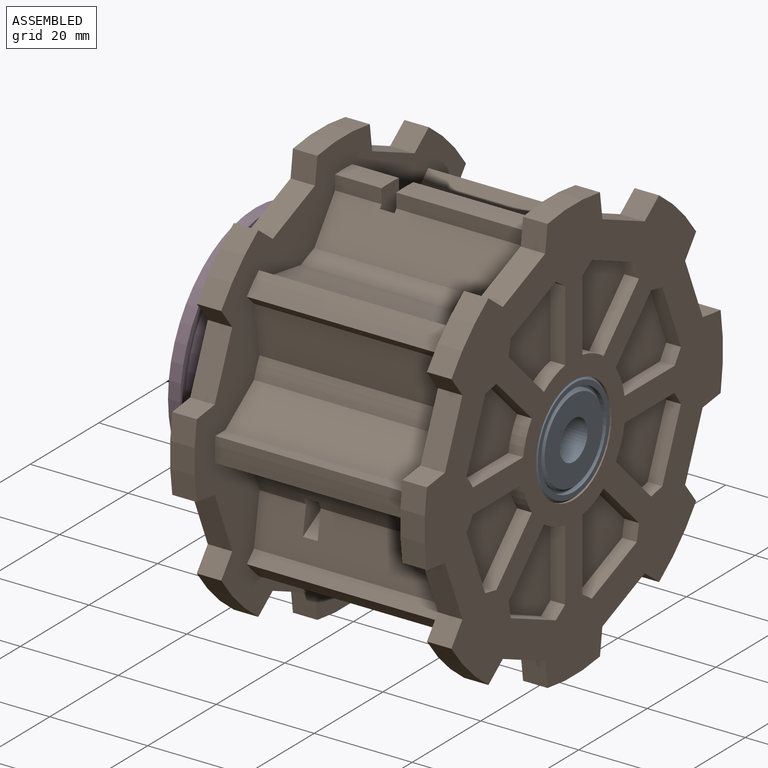
[diagram: assembled view]
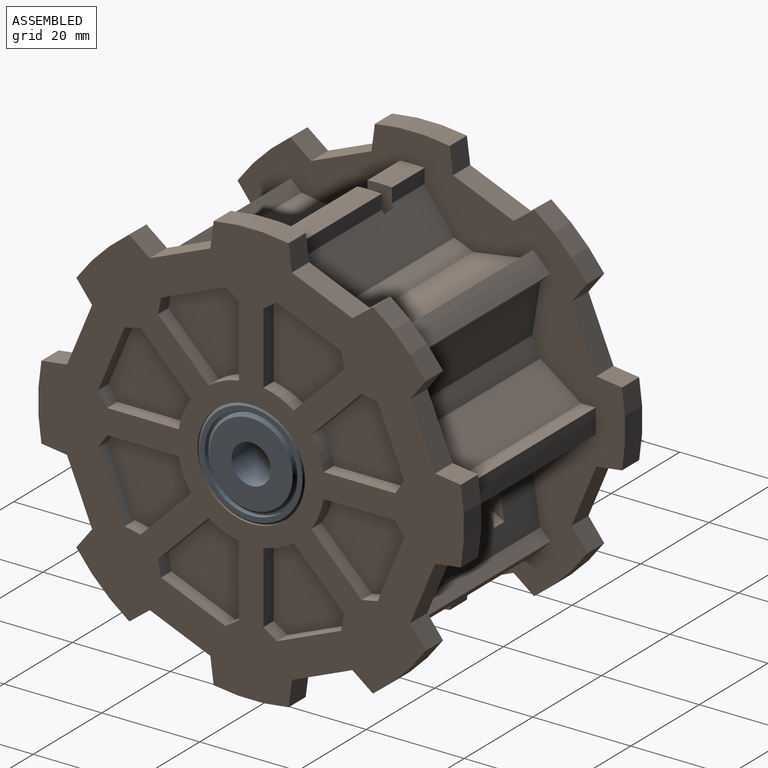
[diagram: assembled view, second angle]
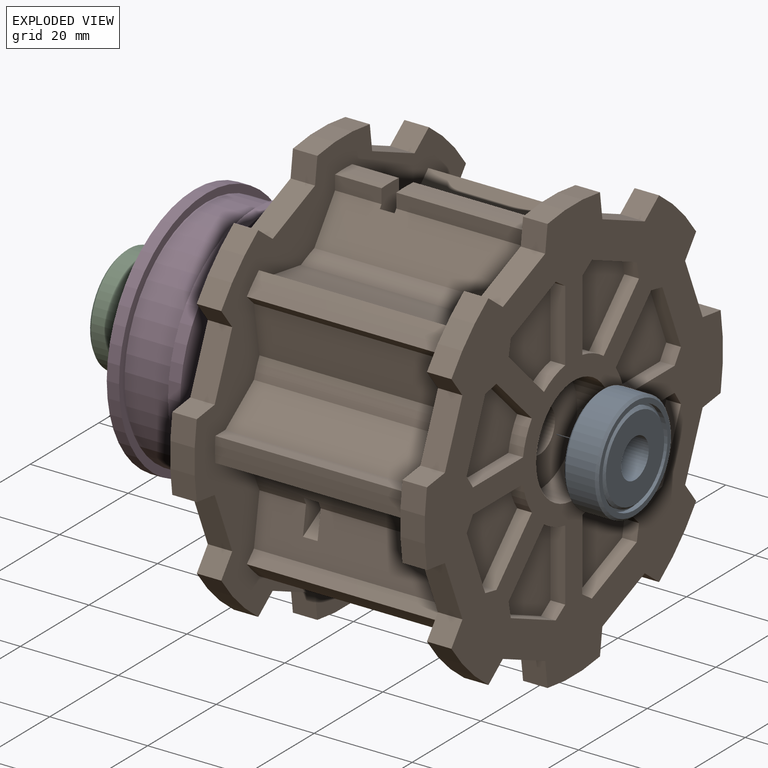
[diagram: exploded view]
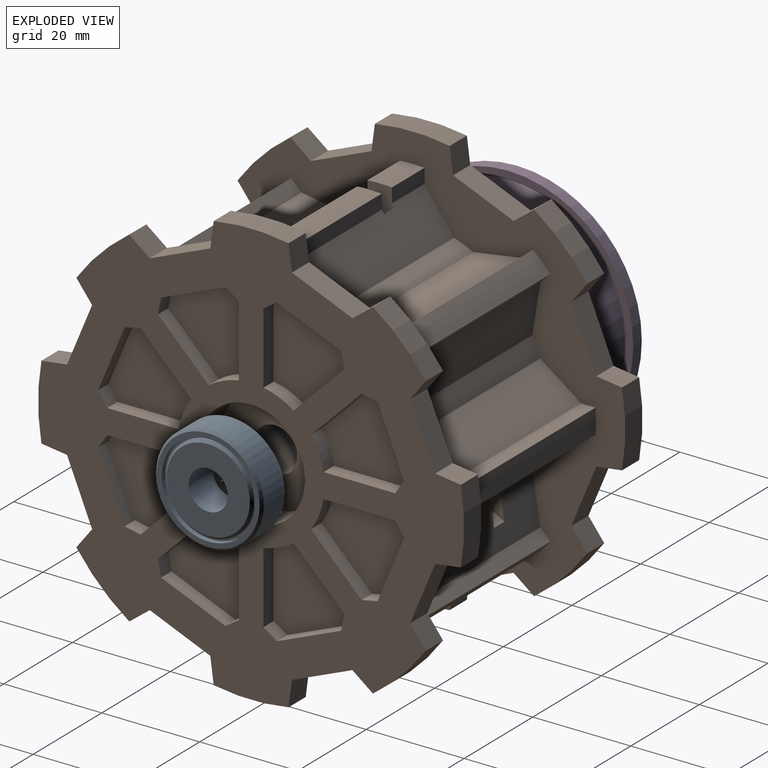
[diagram: exploded view, second angle]
ASSEMBLY  parts=4 mates=4
PART A: 16 faces, bbox 22x22x7 mm
  f0: cone r=8.5mm half-angle=45deg, axis (0,0,1), area 38.9mm2, adj f1,f15
  f1: plane 17x17mm, normal (0,0,-1), area 176.7mm2, adj f0,f2
  f2: cylinder r=4mm len=8mm, axis (0,0,-1), area 175.9mm2, adj f1,f3
  f3: plane 17x17mm, normal (0,0,1), area 176.7mm2, adj f2,f4
  f4: cone r=8.5mm half-angle=45deg, axis (0,0,-1), area 38.9mm2, adj f3,f5
  f5: cylinder r=9mm len=18mm, axis (0,0,-1), area 28.3mm2, adj f4,f6
  f6: plane 19x19mm, normal (0,0,1), area 29.1mm2, adj f5,f7
  f7: cylinder r=9.5mm len=19mm, axis (0,0,-1), area 59.7mm2, adj f6,f8
  f8: plane 21x21mm, normal (0,0,1), area 62.8mm2, adj f7,f9
  f9: cone r=10.5mm half-angle=45deg, axis (0,0,-1), area 47.8mm2, adj f8,f10
  f10: cylinder r=11mm len=22mm, axis (0,0,-1), area 414.7mm2, adj f9,f11
  f11: cone r=10.5mm half-angle=45deg, axis (0,0,1), area 47.8mm2, adj f10,f12
  f12: plane 21x21mm, normal (0,0,-1), area 62.8mm2, adj f11,f13
  f13: cylinder r=9.5mm len=19mm, axis (0,0,-1), area 59.7mm2, adj f12,f14
  f14: plane 19x19mm, normal (0,0,-1), area 29.1mm2, adj f13,f15
  f15: cylinder r=9mm len=18mm, axis (0,0,-1), area 28.3mm2, adj f0,f14
PART B: 206 faces, bbox 52x87x87 mm
  f0: cylinder r=1.65mm len=12.5mm, axis (-1,0,0), area 129.6mm2, adj f182,f202
  f1: cylinder r=1.65mm len=12.5mm, axis (-1,0,0), area 129.6mm2, adj f182,f195
  f2: plane 9.5x2.95mm, normal (0,1,0), area 28mm2, adj f4,f104,f134,f188
  f3: plane 9.5x2.95mm, normal (0,-1,0), area 28mm2, adj f4,f104,f135,f188
  f4: cylinder r=37.5mm len=9.5mm, axis (-1,0,0), area 47.5mm2, adj f2,f3,f104,f188
  f5: cylinder r=1.65mm len=12.5mm, axis (-1,0,0), area 129.6mm2, adj f182,f188
  f6: cylinder r=27.5mm len=42mm, axis (-1,0,0), area 177.6mm2, adj f14,f103,f104,f134
  f7: plane 3.27x3mm, normal (0,-0.98,-0.2), area 10mm2, adj f9,f12,f13,f101
  f8: plane 3x2.77mm, normal (0,0.56,-0.83), area 10mm2, adj f9,f10,f13,f101
  f9: plane 13.1x5.43mm, normal (0,-0.38,-0.92), area 42.5mm2, adj f7,f8,f13,f101
  f10: plane 14.61x3mm, normal (0,1,0), area 43.8mm2, adj f8,f11,f13,f101
  f11: cylinder r=15mm len=6.19mm, axis (1,0,0), area 20.3mm2, adj f10,f12,f13,f101
  f12: plane 10.33x10.33mm, normal (0,-0.71,0.71), area 43.8mm2, adj f7,f11,f13,f101
  f13: plane 19.03x16.52mm, normal (1,0,0), area 208.7mm2, adj f7,f8,f9,f10,f11,f12
  f14: plane 42x10.16mm, normal (0,-0.16,0.99), area 432.2mm2, adj f6,f17,f103,f104
  f15: plane 42x10.16mm, normal (0,0.99,-0.16), area 432.2mm2, adj f16,f19,f103,f104
  f16: plane 42x2.08mm, normal (0,0.71,-0.71), area 123.8mm2, adj f15,f18,f103,f104
  f17: plane 42x2.08mm, normal (0,-0.71,0.71), area 123.8mm2, adj f14,f18,f103,f104
  f18: cylinder r=37.5mm len=42mm, axis (-1,0,0), area 210.2mm2, adj f16,f17,f103,f104
  f19: cylinder r=27.5mm len=42mm, axis (-1,0,0), area 177.6mm2, adj f15,f27,f103,f104
  f20: plane 3x2.77mm, normal (0,-0.83,0.56), area 10mm2, adj f22,f25,f26,f101
  f21: plane 3.27x3mm, normal (0,-0.2,-0.98), area 10mm2, adj f22,f23,f26,f101
  f22: plane 13.1x5.43mm, normal (0,-0.92,-0.38), area 42.5mm2, adj f20,f21,f26,f101
  f23: plane 10.33x10.33mm, normal (0,0.71,-0.71), area 43.8mm2, adj f21,f24,f26,f101
  f24: cylinder r=15mm len=6.19mm, axis (1,0,0), area 20.3mm2, adj f23,f25,f26,f101
  f25: plane 14.61x3mm, normal (0,0,1), area 43.8mm2, adj f20,f24,f26,f101
  f26: plane 19.03x16.52mm, normal (1,0,0), area 208.7mm2, adj f20,f21,f22,f23,f24,f25
  f27: plane 42x8.33mm, normal (0,0.59,0.81), area 432.2mm2, adj f19,f30,f103,f104
  f28: plane 42x8.33mm, normal (0,0.59,-0.81), area 432.2mm2, adj f29,f32,f103,f104
  f29: plane 42x2.95mm, normal (0,0,-1), area 123.8mm2, adj f28,f31,f103,f104
  f30: plane 42x2.95mm, normal (0,0,1), area 123.8mm2, adj f27,f31,f103,f104
  f31: cylinder r=37.5mm len=42mm, axis (-1,0,0), area 210.2mm2, adj f29,f30,f103,f104
  f32: cylinder r=27.5mm len=42mm, axis (-1,0,0), area 173mm2, adj f28,f40,f103,f104,f192,f194,f195
  f33: plane 3.27x3mm, normal (0,-0.2,0.98), area 10mm2, adj f35,f38,f39,f101
  f34: plane 3x2.77mm, normal (0,-0.83,-0.56), area 10mm2, adj f35,f36,f39,f101
  f35: plane 13.1x5.43mm, normal (0,-0.92,0.38), area 42.5mm2, adj f33,f34,f39,f101
  f36: plane 14.61x3mm, normal (0,0,-1), area 43.8mm2, adj f34,f37,f39,f101
  f37: cylinder r=15mm len=6.19mm, axis (1,0,0), area 20.3mm2, adj f36,f38,f39,f101
  f38: plane 10.33x10.33mm, normal (0,0.71,0.71), area 43.8mm2, adj f33,f37,f39,f101
  f39: plane 19.03x16.52mm, normal (1,0,0), area 208.7mm2, adj f33,f34,f35,f36,f37,f38
  f40: plane 42x10.16mm, normal (0,0.99,0.16), area 414.9mm2, adj f32,f43,f103,f104,f193,f194,f195
  f41: plane 42x10.16mm, normal (0,-0.16,-0.99), area 432.2mm2, adj f42,f45,f103,f104
  f42: plane 42x2.08mm, normal (0,-0.71,-0.71), area 123.8mm2, adj f41,f44,f103,f104
  f43: plane 42x2.08mm, normal (0,0.71,0.71), area 123.8mm2, adj f40,f44,f103,f104
  f44: cylinder r=37.5mm len=42mm, axis (-1,0,0), area 210.2mm2, adj f42,f43,f103,f104
  f45: cylinder r=27.5mm len=42mm, axis (-1,0,0), area 177.6mm2, adj f41,f53,f103,f104
  f46: plane 3x2.77mm, normal (0,0.56,0.83), area 10mm2, adj f48,f51,f52,f101
  f47: plane 3.27x3mm, normal (0,-0.98,0.2), area 10mm2, adj f48,f49,f52,f101
  f48: plane 13.1x5.43mm, normal (0,-0.38,0.92), area 42.5mm2, adj f46,f47,f52,f101
  f49: plane 10.33x10.33mm, normal (0,-0.71,-0.71), area 43.8mm2, adj f47,f50,f52,f101
  f50: cylinder r=15mm len=6.19mm, axis (1,0,0), area 20.3mm2, adj f49,f51,f52,f101
  f51: plane 14.61x3mm, normal (0,1,0), area 43.8mm2, adj f46,f50,f52,f101
  f52: plane 19.03x16.52mm, normal (1,0,0), area 208.7mm2, adj f46,f47,f48,f49,f50,f51
  f53: plane 42x8.33mm, normal (0,0.81,-0.59), area 432.2mm2, adj f45,f56,f103,f104
  f54: plane 42x8.33mm, normal (0,-0.81,-0.59), area 432.2mm2, adj f55,f58,f103,f104
  f55: plane 42x2.95mm, normal (0,-1,0), area 123.8mm2, adj f54,f57,f103,f104
  f56: plane 42x2.95mm, normal (0,1,0), area 123.8mm2, adj f53,f57,f103,f104
  f57: cylinder r=37.5mm len=42mm, axis (-1,0,0), area 210.2mm2, adj f55,f56,f103,f104
  f58: cylinder r=27.5mm len=42mm, axis (-1,0,0), area 177.6mm2, adj f54,f66,f103,f104
  f59: plane 3.27x3mm, normal (0,0.98,0.2), area 10mm2, adj f61,f64,f65,f101
  f60: plane 3x2.77mm, normal (0,-0.56,0.83), area 10mm2, adj f61,f62,f65,f101
  f61: plane 13.1x5.43mm, normal (0,0.38,0.92), area 42.5mm2, adj f59,f60,f65,f101
  f62: plane 14.61x3mm, normal (0,-1,0), area 43.8mm2, adj f60,f63,f65,f101
  f63: cylinder r=15mm len=6.19mm, axis (1,0,0), area 20.3mm2, adj f62,f64,f65,f101
  f64: plane 10.33x10.33mm, normal (0,0.71,-0.71), area 43.8mm2, adj f59,f63,f65,f101
  f65: plane 19.03x16.52mm, normal (1,0,0), area 208.7mm2, adj f59,f60,f61,f62,f63,f64
  f66: plane 42x10.16mm, normal (0,0.16,-0.99), area 432.2mm2, adj f58,f69,f103,f104
  f67: plane 42x10.16mm, normal (0,-0.99,0.16), area 414.9mm2, adj f68,f71,f103,f104,f199,f201,f202
  f68: plane 42x2.08mm, normal (0,-0.71,0.71), area 123.8mm2, adj f67,f70,f103,f104
  f69: plane 42x2.08mm, normal (0,0.71,-0.71), area 123.8mm2, adj f66,f70,f103,f104
  f70: cylinder r=37.5mm len=42mm, axis (-1,0,0), area 210.2mm2, adj f68,f69,f103,f104
  f71: cylinder r=27.5mm len=42mm, axis (-1,0,0), area 173mm2, adj f67,f79,f103,f104,f200,f201,f202
  f72: plane 3x2.77mm, normal (0,0.83,-0.56), area 10mm2, adj f74,f77,f78,f101
  f73: plane 3.27x3mm, normal (0,0.2,0.98), area 10mm2, adj f74,f75,f78,f101
  f74: plane 13.1x5.43mm, normal (0,0.92,0.38), area 42.5mm2, adj f72,f73,f78,f101
  f75: plane 10.33x10.33mm, normal (0,-0.71,0.71), area 43.8mm2, adj f73,f76,f78,f101
  f76: cylinder r=15mm len=6.19mm, axis (1,0,0), area 20.3mm2, adj f75,f77,f78,f101
  f77: plane 14.61x3mm, normal (0,0,-1), area 43.8mm2, adj f72,f76,f78,f101
  f78: plane 19.03x16.52mm, normal (1,0,0), area 208.7mm2, adj f72,f73,f74,f75,f76,f77
  f79: plane 42x8.33mm, normal (0,-0.59,-0.81), area 432.2mm2, adj f71,f82,f103,f104
  f80: plane 42x8.33mm, normal (0,-0.59,0.81), area 432.2mm2, adj f81,f84,f103,f104
  f81: plane 42x2.95mm, normal (0,0,1), area 123.8mm2, adj f80,f83,f103,f104
  f82: plane 42x2.95mm, normal (0,0,-1), area 123.8mm2, adj f79,f83,f103,f104
  f83: cylinder r=37.5mm len=42mm, axis (-1,0,0), area 210.2mm2, adj f81,f82,f103,f104
  f84: cylinder r=27.5mm len=42mm, axis (-1,0,0), area 177.6mm2, adj f80,f92,f103,f104
  f85: plane 3.27x3mm, normal (0,0.2,-0.98), area 10mm2, adj f87,f90,f91,f101
  f86: plane 3x2.77mm, normal (0,0.83,0.56), area 10mm2, adj f87,f88,f91,f101
  f87: plane 13.1x5.43mm, normal (0,0.92,-0.38), area 42.5mm2, adj f85,f86,f91,f101
  f88: plane 14.61x3mm, normal (0,0,1), area 43.8mm2, adj f86,f89,f91,f101
  f89: cylinder r=15mm len=6.19mm, axis (1,0,0), area 20.3mm2, adj f88,f90,f91,f101
  f90: plane 10.33x10.33mm, normal (0,-0.71,-0.71), area 43.8mm2, adj f85,f89,f91,f101
  f91: plane 19.03x16.52mm, normal (1,0,0), area 208.7mm2, adj f85,f86,f87,f88,f89,f90
  f92: plane 42x10.16mm, normal (0,-0.99,-0.16), area 432.2mm2, adj f84,f95,f103,f104
  f93: plane 42x10.16mm, normal (0,0.16,0.99), area 432.2mm2, adj f94,f103,f104,f119
  f94: plane 42x2.08mm, normal (0,0.71,0.71), area 123.8mm2, adj f93,f96,f103,f104
  f95: plane 42x2.08mm, normal (0,-0.71,-0.71), area 123.8mm2, adj f92,f96,f103,f104
  f96: cylinder r=37.5mm len=42mm, axis (-1,0,0), area 210.2mm2, adj f94,f95,f103,f104
  f97: cylinder r=43.5mm len=10.81mm, axis (-1,0,0), area 76.8mm2, adj f102,f104,f168,f172
  f98: cylinder r=43.5mm len=15.29mm, axis (-1,0,0), area 76.8mm2, adj f102,f104,f159,f169
  f99: cylinder r=43.5mm len=10.81mm, axis (-1,0,0), area 76.8mm2, adj f101,f103,f174,f176
  f100: cylinder r=43.5mm len=15.29mm, axis (-1,0,0), area 76.8mm2, adj f101,f103,f165,f173
  f101: plane 87x87mm, normal (1,0,0), area 3208.2mm2, adj f7,f8,f9,f10,f11,f12,f20,f21
  f102: plane 87x87mm, normal (-1,0,0), area 3215.2mm2, adj f97,f98,f105,f106,f109,f110,f114,f116
  f103: plane 87x87mm, normal (-1,0,0), area 2150.8mm2, adj f6,f14,f15,f16,f17,f18,f19,f27
  f104: plane 87x87mm, normal (1,0,0), area 2150.8mm2, adj f2,f3,f4,f6,f14,f15,f16,f17
  f105: cylinder r=43.5mm len=10.81mm, axis (-1,0,0), area 76.8mm2, adj f102,f104,f156,f160
  f106: cylinder r=43.5mm len=15.29mm, axis (-1,0,0), area 76.8mm2, adj f102,f104,f147,f157
  f107: cylinder r=43.5mm len=10.81mm, axis (-1,0,0), area 76.8mm2, adj f101,f103,f162,f164
  f108: cylinder r=43.5mm len=15.29mm, axis (-1,0,0), area 76.8mm2, adj f101,f103,f153,f161
  f109: cylinder r=43.5mm len=10.81mm, axis (-1,0,0), area 76.8mm2, adj f102,f104,f144,f148
  f110: cylinder r=43.5mm len=15.29mm, axis (-1,0,0), area 76.8mm2, adj f102,f104,f126,f145
  f111: cylinder r=43.5mm len=10.81mm, axis (-1,0,0), area 76.8mm2, adj f101,f103,f150,f152
  f112: cylinder r=43.5mm len=15.29mm, axis (-1,0,0), area 76.8mm2, adj f101,f103,f132,f149
  f113: cylinder r=4.5mm len=37mm, axis (-1,0,0), area 1046.2mm2, adj f142,f184
  f114: cylinder r=43.5mm len=10.81mm, axis (-1,0,0), area 76.8mm2, adj f102,f104,f123,f127
  f115: cylinder r=43.5mm len=10.81mm, axis (-1,0,0), area 76.8mm2, adj f101,f103,f129,f131
  f116: cylinder r=43.5mm len=15.29mm, axis (-1,0,0), area 76.8mm2, adj f102,f104,f124,f171
  f117: cylinder r=43.5mm len=15.29mm, axis (-1,0,0), area 76.8mm2, adj f101,f103,f128,f177
  f118: plane 29.5x2.95mm, normal (0,1,0), area 86.9mm2, adj f103,f121,f134,f187
  f119: cylinder r=27.5mm len=42mm, axis (-1,0,0), area 177.6mm2, adj f93,f103,f104,f135
  f120: plane 29.5x2.95mm, normal (0,-1,0), area 86.9mm2, adj f103,f121,f135,f187
  f121: cylinder r=37.5mm len=29.5mm, axis (-1,0,0), area 147.6mm2, adj f103,f118,f120,f187
  f122: plane 12.35x5.12mm, normal (0,-0.38,0.92), area 66.9mm2, adj f102,f104,f123,f124
  f123: plane 5x4.19mm, normal (0,0.61,0.79), area 26.4mm2, adj f102,f104,f114,f122
  f124: plane 5.24x5mm, normal (0,-0.99,0.13), area 26.4mm2, adj f102,f104,f116,f122
  f125: plane 12.35x5.12mm, normal (0,-0.92,0.38), area 66.9mm2, adj f102,f104,f126,f127
  f126: plane 5.24x5mm, normal (0,-0.13,0.99), area 26.4mm2, adj f102,f104,f110,f125
  f127: plane 5x4.19mm, normal (0,-0.79,-0.61), area 26.4mm2, adj f102,f104,f114,f125
  f128: plane 5.24x5mm, normal (0,-0.99,0.13), area 26.4mm2, adj f101,f103,f117,f130
  f129: plane 5x4.19mm, normal (0,0.61,0.79), area 26.4mm2, adj f101,f103,f115,f130
  f130: plane 12.35x5.12mm, normal (0,-0.38,0.92), area 66.9mm2, adj f101,f103,f128,f129
  f131: plane 5x4.19mm, normal (0,-0.79,-0.61), area 26.4mm2, adj f101,f103,f115,f133
  f132: plane 5.24x5mm, normal (0,-0.13,0.99), area 26.4mm2, adj f101,f103,f112,f133
  f133: plane 12.35x5.12mm, normal (0,-0.92,0.38), area 66.9mm2, adj f101,f103,f131,f132
  f134: plane 42x8.33mm, normal (0,0.81,0.59), area 429.6mm2, adj f2,f6,f103,f104,f118,f185,f187,f188
  f135: plane 42x8.33mm, normal (0,-0.81,0.59), area 429.6mm2, adj f3,f103,f104,f119,f120,f186,f187,f188
  f136: plane 13.1x5.43mm, normal (0,0.38,-0.92), area 42.5mm2, adj f101,f140,f179,f180
  f137: plane 10.33x10.33mm, normal (0,0.71,0.71), area 43.8mm2, adj f101,f138,f140,f179
  f138: cylinder r=15mm len=6.19mm, axis (1,0,0), area 20.3mm2, adj f101,f137,f139,f140
  f139: plane 14.61x3mm, normal (0,-1,0), area 43.8mm2, adj f101,f138,f140,f180
  f140: plane 19.03x16.52mm, normal (1,0,0), area 208.7mm2, adj f136,f137,f138,f139,f179,f180
  f141: cylinder r=11mm len=22mm, axis (1,0,0), area 483.8mm2, adj f101,f142
  f142: plane 22x22mm, normal (1,0,0), area 316.5mm2, adj f113,f141
  f143: plane 12.35x5.12mm, normal (0,-0.92,-0.38), area 66.9mm2, adj f102,f104,f144,f145
  f144: plane 5x4.19mm, normal (0,-0.79,0.61), area 26.4mm2, adj f102,f104,f109,f143
  f145: plane 5.24x5mm, normal (0,-0.13,-0.99), area 26.4mm2, adj f102,f104,f110,f143
  f146: plane 12.35x5.12mm, normal (0,-0.38,-0.92), area 66.9mm2, adj f102,f104,f147,f148
  f147: plane 5.24x5mm, normal (0,-0.99,-0.13), area 26.4mm2, adj f102,f104,f106,f146
  f148: plane 5x4.19mm, normal (0,0.61,-0.79), area 26.4mm2, adj f102,f104,f109,f146
  f149: plane 5.24x5mm, normal (0,-0.13,-0.99), area 26.4mm2, adj f101,f103,f112,f151
  f150: plane 5x4.19mm, normal (0,-0.79,0.61), area 26.4mm2, adj f101,f103,f111,f151
  f151: plane 12.35x5.12mm, normal (0,-0.92,-0.38), area 66.9mm2, adj f101,f103,f149,f150
  f152: plane 5x4.19mm, normal (0,0.61,-0.79), area 26.4mm2, adj f101,f103,f111,f154
  f153: plane 5.24x5mm, normal (0,-0.99,-0.13), area 26.4mm2, adj f101,f103,f108,f154
  f154: plane 12.35x5.12mm, normal (0,-0.38,-0.92), area 66.9mm2, adj f101,f103,f152,f153
  f155: plane 12.35x5.12mm, normal (0,0.38,-0.92), area 66.9mm2, adj f102,f104,f156,f157
  f156: plane 5x4.19mm, normal (0,-0.61,-0.79), area 26.4mm2, adj f102,f104,f105,f155
  f157: plane 5.24x5mm, normal (0,0.99,-0.13), area 26.4mm2, adj f102,f104,f106,f155
  f158: plane 12.35x5.12mm, normal (0,0.92,-0.38), area 66.9mm2, adj f102,f104,f159,f160
  f159: plane 5.24x5mm, normal (0,0.13,-0.99), area 26.4mm2, adj f98,f102,f104,f158
  f160: plane 5x4.19mm, normal (0,0.79,0.61), area 26.4mm2, adj f102,f104,f105,f158
  f161: plane 5.24x5mm, normal (0,0.99,-0.13), area 26.4mm2, adj f101,f103,f108,f163
  f162: plane 5x4.19mm, normal (0,-0.61,-0.79), area 26.4mm2, adj f101,f103,f107,f163
  f163: plane 12.35x5.12mm, normal (0,0.38,-0.92), area 66.9mm2, adj f101,f103,f161,f162
  f164: plane 5x4.19mm, normal (0,0.79,0.61), area 26.4mm2, adj f101,f103,f107,f166
  f165: plane 5.24x5mm, normal (0,0.13,-0.99), area 26.4mm2, adj f100,f101,f103,f166
  f166: plane 12.35x5.12mm, normal (0,0.92,-0.38), area 66.9mm2, adj f101,f103,f164,f165
  f167: plane 12.35x5.12mm, normal (0,0.92,0.38), area 66.9mm2, adj f102,f104,f168,f169
  f168: plane 5x4.19mm, normal (0,0.79,-0.61), area 26.4mm2, adj f97,f102,f104,f167
  f169: plane 5.24x5mm, normal (0,0.13,0.99), area 26.4mm2, adj f98,f102,f104,f167
  f170: plane 12.35x5.12mm, normal (0,0.38,0.92), area 66.9mm2, adj f102,f104,f171,f172
  f171: plane 5.24x5mm, normal (0,0.99,0.13), area 26.4mm2, adj f102,f104,f116,f170
  f172: plane 5x4.19mm, normal (0,-0.61,0.79), area 26.4mm2, adj f97,f102,f104,f170
  f173: plane 5.24x5mm, normal (0,0.13,0.99), area 26.4mm2, adj f100,f101,f103,f175
  f174: plane 5x4.19mm, normal (0,0.79,-0.61), area 26.4mm2, adj f99,f101,f103,f175
  f175: plane 12.35x5.12mm, normal (0,0.92,0.38), area 66.9mm2, adj f101,f103,f173,f174
  f176: plane 5x4.19mm, normal (0,-0.61,0.79), area 26.4mm2, adj f99,f101,f103,f178
  f177: plane 5.24x5mm, normal (0,0.99,0.13), area 26.4mm2, adj f101,f103,f117,f178
  f178: plane 12.35x5.12mm, normal (0,0.38,0.92), area 66.9mm2, adj f101,f103,f176,f177
  f179: plane 3.27x3mm, normal (0,0.98,-0.2), area 10mm2, adj f101,f136,f137,f140
  f180: plane 3x2.77mm, normal (0,-0.56,-0.83), area 10mm2, adj f101,f136,f139,f140
  f181: cylinder r=25.5mm len=51mm, axis (-1,0,0), area 320.4mm2, adj f102,f182
  f182: plane 51x51mm, normal (-1,0,0), area 1109.2mm2, adj f0,f1,f5,f181,f183
  f183: cylinder r=17mm len=34mm, axis (-1,0,0), area 640.9mm2, adj f182,f184
  f184: plane 34x34mm, normal (-1,0,0), area 844.3mm2, adj f113,f183
  f185: plane 18.78x3mm, normal (0,-1,0), area 56.3mm2, adj f134,f187,f188,f189
  f186: plane 18.78x3mm, normal (0,1,0), area 56.3mm2, adj f135,f187,f188,f189
  f187: plane 22.5x6mm, normal (-1,0,0), area 122.9mm2, adj f118,f120,f121,f134,f135,f185,f186,f189
  f188: plane 22.5x6mm, normal (1,0,0), area 122.9mm2, adj f2,f3,f4,f5,f134,f135,f185,f186
  f189: plane 6x3mm, normal (0,0,1), area 18mm2, adj f185,f186,f187,f188
  f190: plane 3.3x3.3mm, normal (-1,0,0), area 8.6mm2, adj f191
  f191: cylinder r=1.65mm len=7.5mm, axis (-1,0,0), area 77.8mm2, adj f187,f190
  f192: plane 10.68x6.17mm, normal (0,-0.5,-0.87), area 37mm2, adj f32,f194,f195,f196
  f193: plane 13.94x8.05mm, normal (0,0.5,0.87), area 48.3mm2, adj f40,f194,f195,f196
  f194: plane 13.94x13.25mm, normal (-1,0,0), area 74.3mm2, adj f32,f40,f192,f193,f196,f198
  f195: plane 13.94x13.25mm, normal (1,0,0), area 74.3mm2, adj f1,f32,f40,f192,f193,f196
  f196: plane 5.2x3mm, normal (0,0.87,-0.5), area 18mm2, adj f192,f193,f194,f195
  f197: plane 3.3x3.3mm, normal (-1,0,0), area 8.6mm2, adj f198
  f198: cylinder r=1.65mm len=7.5mm, axis (-1,0,0), area 77.8mm2, adj f194,f197
  f199: plane 13.94x8.05mm, normal (0,-0.5,0.87), area 48.3mm2, adj f67,f201,f202,f203
  f200: plane 10.68x6.17mm, normal (0,0.5,-0.87), area 37mm2, adj f71,f201,f202,f203
  f201: plane 13.94x13.25mm, normal (-1,0,0), area 74.3mm2, adj f67,f71,f199,f200,f203,f205
  f202: plane 13.94x13.25mm, normal (1,0,0), area 74.3mm2, adj f0,f67,f71,f199,f200,f203
  f203: plane 5.2x3mm, normal (0,-0.87,-0.5), area 18mm2, adj f199,f200,f201,f202
  f204: plane 3.3x3.3mm, normal (-1,0,0), area 8.6mm2, adj f205
  f205: cylinder r=1.65mm len=7.5mm, axis (-1,0,0), area 77.8mm2, adj f201,f204
PART C: same geometry as A
PART D: 21 faces, bbox 21x51x51 mm
  f0: cylinder r=17mm len=34mm, axis (-1,0,0), area 640.9mm2, adj f1,f11
  f1: plane 51x51mm, normal (1,0,0), area 1109.2mm2, adj f0,f2,f12,f15,f18
  f2: cylinder r=25.5mm len=51mm, axis (-1,0,0), area 400.6mm2, adj f1,f3
  f3: plane 51x51mm, normal (-1,0,0), area 252.1mm2, adj f2,f4
  f4: cylinder r=23.88mm len=47.75mm, axis (-1,0,0), area 1500.1mm2, adj f3,f5
  f5: plane 51x51mm, normal (1,0,0), area 252.1mm2, adj f4,f6
  f6: cylinder r=25.5mm len=51mm, axis (-1,0,0), area 400.6mm2, adj f5,f7
  f7: plane 51x51mm, normal (-1,0,0), area 1563.1mm2, adj f6,f8,f14,f17,f20
  f8: cylinder r=11mm len=22mm, axis (-1,0,0), area 483.8mm2, adj f7,f9
  f9: plane 22x22mm, normal (-1,0,0), area 316.5mm2, adj f8,f10
  f10: cylinder r=4.5mm len=14mm, axis (-1,0,0), area 395.8mm2, adj f9,f11
  f11: plane 34x34mm, normal (1,0,0), area 844.3mm2, adj f0,f10
  f12: cylinder r=1.65mm len=12mm, axis (-1,0,0), area 124.4mm2, adj f1,f13
  f13: plane 6.5x6.5mm, normal (-1,0,0), area 24.6mm2, adj f12,f14
  f14: cylinder r=3.25mm len=6.5mm, axis (-1,0,0), area 61.3mm2, adj f7,f13
  f15: cylinder r=1.65mm len=12mm, axis (-1,0,0), area 124.4mm2, adj f1,f16
  f16: plane 6.5x6.5mm, normal (-1,0,0), area 24.6mm2, adj f15,f17
  f17: cylinder r=3.25mm len=6.5mm, axis (-1,0,0), area 61.3mm2, adj f7,f16
  f18: cylinder r=1.65mm len=12mm, axis (-1,0,0), area 124.4mm2, adj f1,f19
  f19: plane 6.5x6.5mm, normal (-1,0,0), area 24.6mm2, adj f18,f20
  f20: cylinder r=3.25mm len=6.5mm, axis (-1,0,0), area 61.3mm2, adj f7,f19
PLACE A rot(axis=(0.71,0,-0.71),180deg) t=(61.5,0,0)mm
PLACE B t=(39,0,0)mm
PLACE C rot(axis=(0.71,0,0.71),180deg) t=(3.5,0,0)mm
PLACE D t=(15,0,0)mm
MATE revolute B.f4 <-> D.f0  axis (-1,0,0) through (21,0,0)mm
MATE revolute C.f0 <-> D.f0  axis (1,0,0) through (7,0,0)mm
MATE cylindrical B.f5 <-> D.f12  axis (-1,0,0) through (34.25,0,20)mm
MATE revolute A.f0 <-> B.f4  axis (-1,0,0) through (58,0,0)mm
